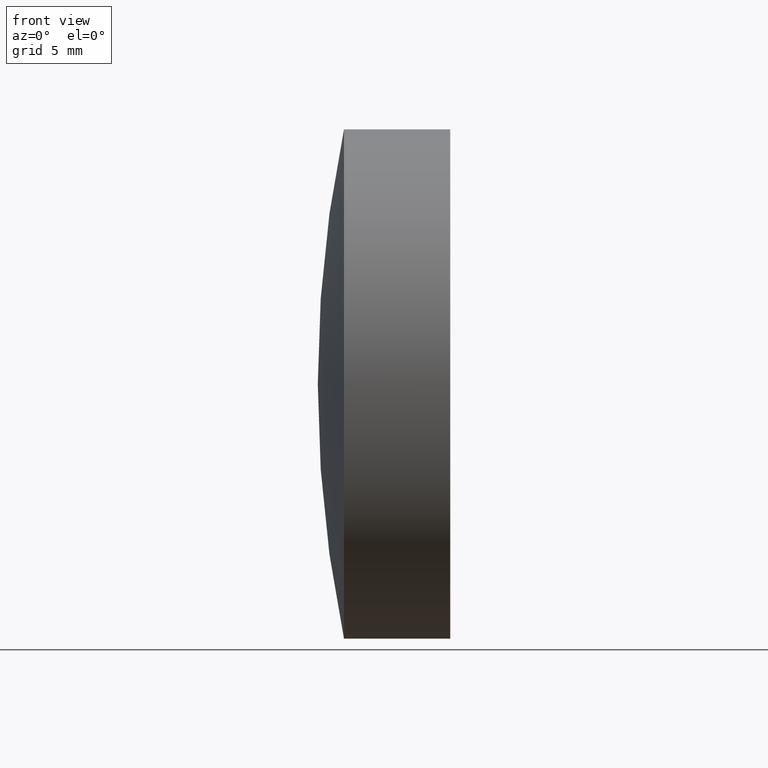
[diagram: clean part render]
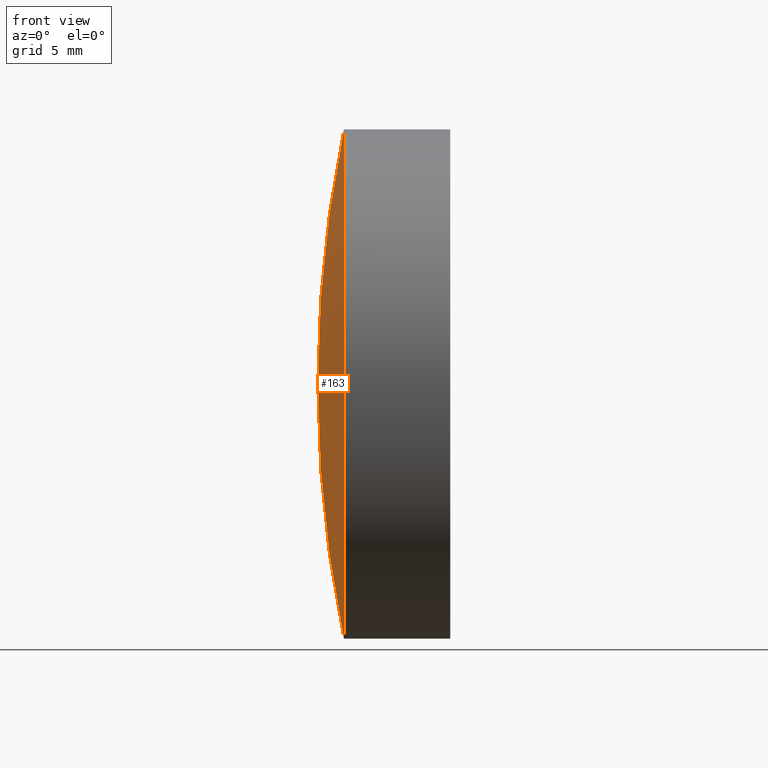
[diagram: same view with one face highlighted and labeled with its STEP entity id]
A machine part, front view. The second image highlights one B-rep face of the part: STEP entity #163.
In plain terms, the highlighted spherical surface has radius 62.4 mm.
Its self-contained STEP definition (entity closure, byte-faithful):
#12 = DIRECTION ( 'NONE',  ( 0.0000000000000000000, 0.0000000000000000000, 1.000000000000000000 ) ) ;
#13 = VERTEX_POINT ( 'NONE', #270 ) ;
#22 = DIRECTION ( 'NONE',  ( 0.0000000000000000000, 0.0000000000000000000, 1.000000000000000000 ) ) ;
#28 = AXIS2_PLACEMENT_3D ( 'NONE', #177, #214, #269 ) ;
#49 = CIRCLE ( 'NONE', #294, 62.40000000000002000 ) ;
#55 = VERTEX_POINT ( 'NONE', #153 ) ;
#59 = FACE_OUTER_BOUND ( 'NONE', #237, .T. ) ;
#73 = CIRCLE ( 'NONE', #90, 62.40000000000002000 ) ;
#85 = SPHERICAL_SURFACE ( 'NONE', #28, 62.40000000000002000 ) ;
#90 = AXIS2_PLACEMENT_3D ( 'NONE', #213, #296, #300 ) ;
#119 = EDGE_CURVE ( 'NONE', #271, #13, #173, .T. ) ;
#153 = CARTESIAN_POINT ( 'NONE',  ( 336.3404997922063400, 0.0000000000000000000, 1.305949792480519800E-014 ) ) ;
#163 = ADVANCED_FACE ( 'NONE', ( #59 ), #85, .T. ) ;
#173 = CIRCLE ( 'NONE', #196, 12.69999999999988200 ) ;
#176 = DIRECTION ( 'NONE',  ( -1.000000000000000000, -0.0000000000000000000, -0.0000000000000000000 ) ) ;
#177 = CARTESIAN_POINT ( 'NONE',  ( 398.7404997922063800, 0.0000000000000000000, 1.688039593814494100E-014 ) ) ;
#192 = ORIENTED_EDGE ( 'NONE', *, *, #273, .F. ) ;
#196 = AXIS2_PLACEMENT_3D ( 'NONE', #340, #176, #22 ) ;
#213 = CARTESIAN_POINT ( 'NONE',  ( 398.7404997922063800, 0.0000000000000000000, 1.688039593814494100E-014 ) ) ;
#214 = DIRECTION ( 'NONE',  ( -0.0000000000000000000, -1.000000000000000000, -0.0000000000000000000 ) ) ;
#237 = EDGE_LOOP ( 'NONE', ( #327, #328, #192 ) ) ;
#269 = DIRECTION ( 'NONE',  ( 0.0000000000000000000, 0.0000000000000000000, -1.000000000000000000 ) ) ;
#270 = CARTESIAN_POINT ( 'NONE',  ( 337.6465557388061100, -1.555301434917122300E-015, 12.69999999999988600 ) ) ;
#271 = VERTEX_POINT ( 'NONE', #289 ) ;
#273 = EDGE_CURVE ( 'NONE', #271, #55, #49, .T. ) ;
#289 = CARTESIAN_POINT ( 'NONE',  ( 337.6465557388061100, 0.0000000000000000000, -12.69999999999986800 ) ) ;
#294 = AXIS2_PLACEMENT_3D ( 'NONE', #295, #341, #12 ) ;
#295 = CARTESIAN_POINT ( 'NONE',  ( 398.7404997922063800, 0.0000000000000000000, 1.688039593814494100E-014 ) ) ;
#296 = DIRECTION ( 'NONE',  ( 0.0000000000000000000, -1.000000000000000000, -1.224646799147353200E-016 ) ) ;
#300 = DIRECTION ( 'NONE',  ( 0.0000000000000000000, 1.224646799147353200E-016, -1.000000000000000000 ) ) ;
#327 = ORIENTED_EDGE ( 'NONE', *, *, #119, .T. ) ;
#328 = ORIENTED_EDGE ( 'NONE', *, *, #329, .T. ) ;
#329 = EDGE_CURVE ( 'NONE', #13, #55, #73, .T. ) ;
#340 = CARTESIAN_POINT ( 'NONE',  ( 337.6465557388061100, 0.0000000000000000000, 0.0000000000000000000 ) ) ;
#341 = DIRECTION ( 'NONE',  ( 0.0000000000000000000, 1.000000000000000000, -0.0000000000000000000 ) ) ;